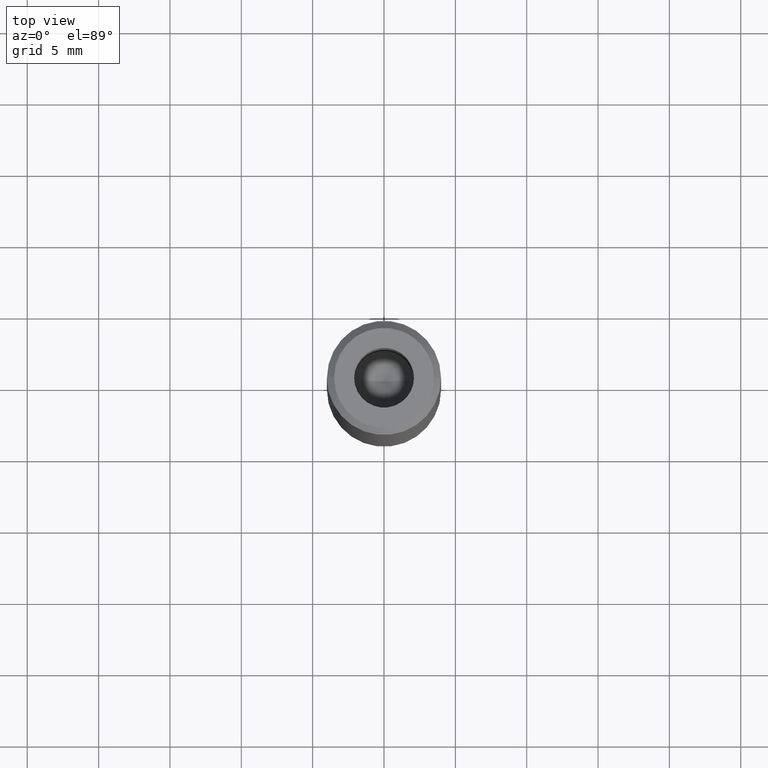
[diagram: clean part render]
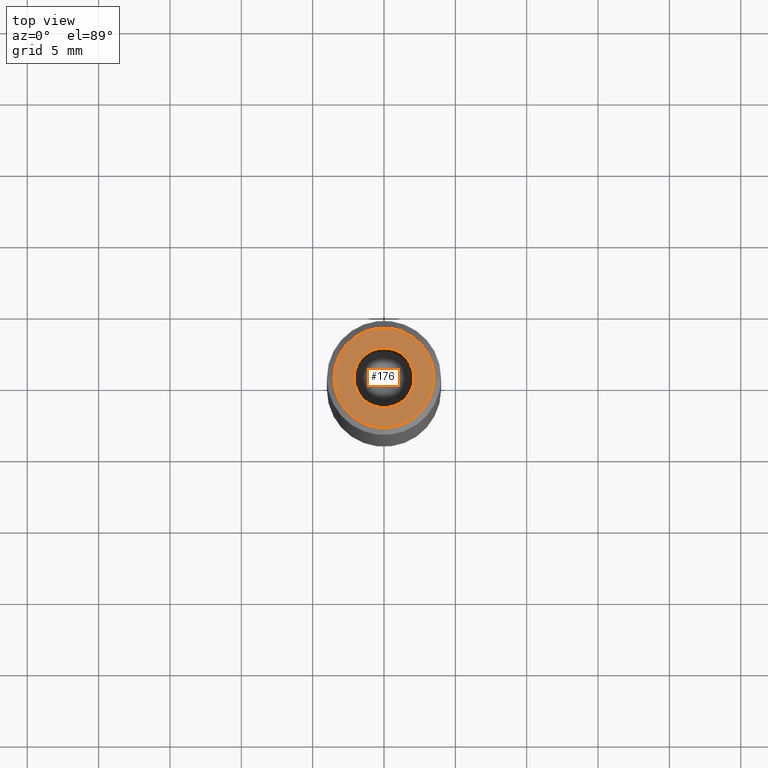
[diagram: same view with one face highlighted and labeled with its STEP entity id]
A machine part, top view. The second image highlights one B-rep face of the part: STEP entity #176.
In plain terms, the highlighted planar face has unit normal (0, -0, 1).
Its self-contained STEP definition (entity closure, byte-faithful):
#22 = CARTESIAN_POINT ( 'NONE',  ( -2.099999999999998757, 2.571758278209439985E-16, -1.990051048614449116E-16 ) ) ;
#36 = CARTESIAN_POINT ( 'NONE',  ( 0.000000000000000000, 0.000000000000000000, 0.000000000000000000 ) ) ;
#55 = CARTESIAN_POINT ( 'NONE',  ( 0.000000000000000000, 0.000000000000000000, 0.000000000000000000 ) ) ;
#61 = AXIS2_PLACEMENT_3D ( 'NONE', #36, #496, #396 ) ;
#73 = EDGE_CURVE ( 'NONE', #213, #129, #570, .T. ) ;
#83 = DIRECTION ( 'NONE',  ( 0.000000000000000000, -0.000000000000000000, 1.000000000000000000 ) ) ;
#126 = FACE_BOUND ( 'NONE', #139, .T. ) ;
#129 = VERTEX_POINT ( 'NONE', #315 ) ;
#137 = DIRECTION ( 'NONE',  ( -0.000000000000000000, -0.000000000000000000, 1.000000000000000000 ) ) ;
#139 = EDGE_LOOP ( 'NONE', ( #193, #240 ) ) ;
#159 = ORIENTED_EDGE ( 'NONE', *, *, #73, .T. ) ;
#176 = ADVANCED_FACE ( 'NONE', ( #126, #311 ), #494, .T. ) ;
#187 = CARTESIAN_POINT ( 'NONE',  ( 0.000000000000000000, 0.000000000000000000, -1.990051048614449116E-16 ) ) ;
#193 = ORIENTED_EDGE ( 'NONE', *, *, #436, .F. ) ;
#213 = VERTEX_POINT ( 'NONE', #371 ) ;
#219 = EDGE_CURVE ( 'NONE', #370, #557, #402, .T. ) ;
#220 = DIRECTION ( 'NONE',  ( 1.000000000000000000, 0.000000000000000000, 0.000000000000000000 ) ) ;
#240 = ORIENTED_EDGE ( 'NONE', *, *, #219, .F. ) ;
#244 = DIRECTION ( 'NONE',  ( 1.000000000000000000, 0.000000000000000000, 0.000000000000000000 ) ) ;
#266 = CIRCLE ( 'NONE', #438, 2.099999999999998757 ) ;
#298 = AXIS2_PLACEMENT_3D ( 'NONE', #55, #137, #373 ) ;
#311 = FACE_OUTER_BOUND ( 'NONE', #459, .T. ) ;
#315 = CARTESIAN_POINT ( 'NONE',  ( 3.499999999999989342, 4.592425496802568056E-16, 0.000000000000000000 ) ) ;
#321 = EDGE_CURVE ( 'NONE', #129, #213, #384, .T. ) ;
#360 = CARTESIAN_POINT ( 'NONE',  ( 2.099999999999998757, 0.000000000000000000, -1.990051048614449116E-16 ) ) ;
#370 = VERTEX_POINT ( 'NONE', #22 ) ;
#371 = CARTESIAN_POINT ( 'NONE',  ( -3.499999999999989342, 0.000000000000000000, 0.000000000000000000 ) ) ;
#373 = DIRECTION ( 'NONE',  ( 1.000000000000000000, 0.000000000000000000, 0.000000000000000000 ) ) ;
#384 = CIRCLE ( 'NONE', #298, 3.499999999999989342 ) ;
#387 = ORIENTED_EDGE ( 'NONE', *, *, #321, .T. ) ;
#396 = DIRECTION ( 'NONE',  ( 1.000000000000000000, 0.000000000000000000, 0.000000000000000000 ) ) ;
#402 = CIRCLE ( 'NONE', #483, 2.099999999999998757 ) ;
#416 = DIRECTION ( 'NONE',  ( 1.000000000000000000, 0.000000000000000000, 0.000000000000000000 ) ) ;
#436 = EDGE_CURVE ( 'NONE', #557, #370, #266, .T. ) ;
#438 = AXIS2_PLACEMENT_3D ( 'NONE', #525, #560, #244 ) ;
#459 = EDGE_LOOP ( 'NONE', ( #159, #387 ) ) ;
#483 = AXIS2_PLACEMENT_3D ( 'NONE', #187, #548, #416 ) ;
#494 = PLANE ( 'NONE',  #562 ) ;
#496 = DIRECTION ( 'NONE',  ( -0.000000000000000000, -0.000000000000000000, 1.000000000000000000 ) ) ;
#525 = CARTESIAN_POINT ( 'NONE',  ( 0.000000000000000000, 0.000000000000000000, -1.990051048614449116E-16 ) ) ;
#548 = DIRECTION ( 'NONE',  ( -0.000000000000000000, -0.000000000000000000, 1.000000000000000000 ) ) ;
#557 = VERTEX_POINT ( 'NONE', #360 ) ;
#560 = DIRECTION ( 'NONE',  ( -0.000000000000000000, -0.000000000000000000, 1.000000000000000000 ) ) ;
#562 = AXIS2_PLACEMENT_3D ( 'NONE', #584, #83, #220 ) ;
#570 = CIRCLE ( 'NONE', #61, 3.499999999999989342 ) ;
#584 = CARTESIAN_POINT ( 'NONE',  ( 0.000000000000000000, 0.000000000000000000, 0.000000000000000000 ) ) ;